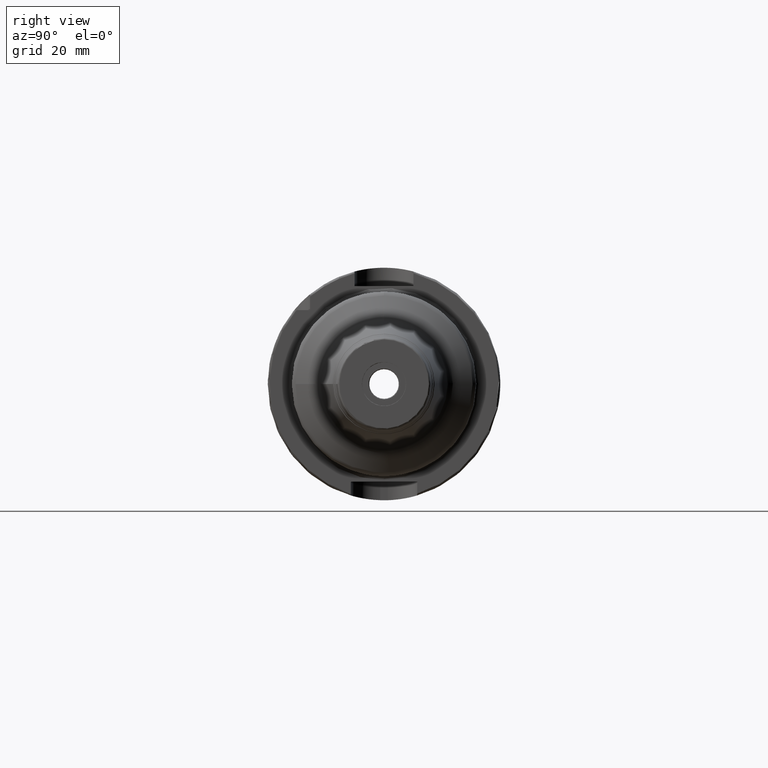
[diagram: clean part render]
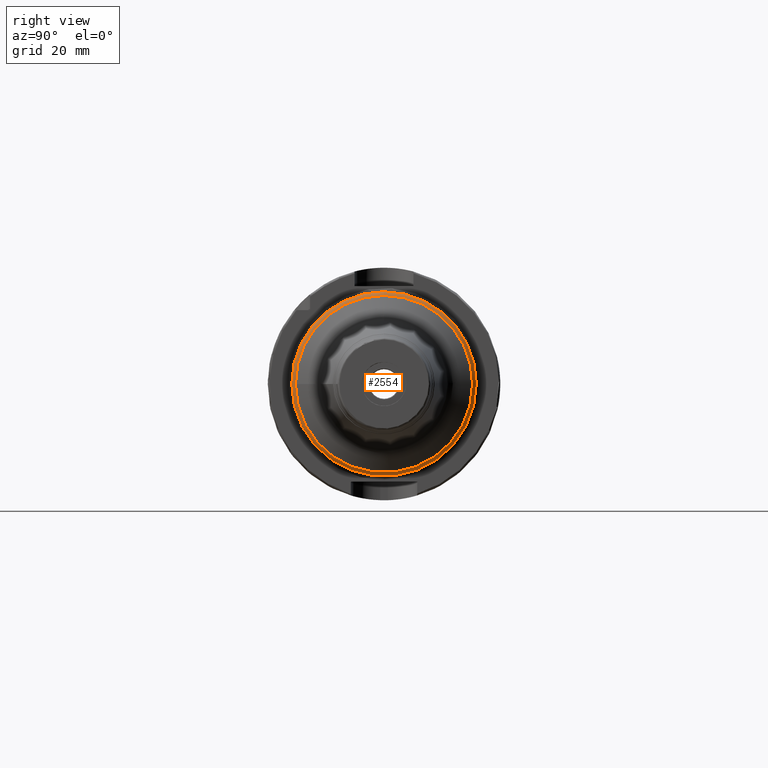
[diagram: same view with one face highlighted and labeled with its STEP entity id]
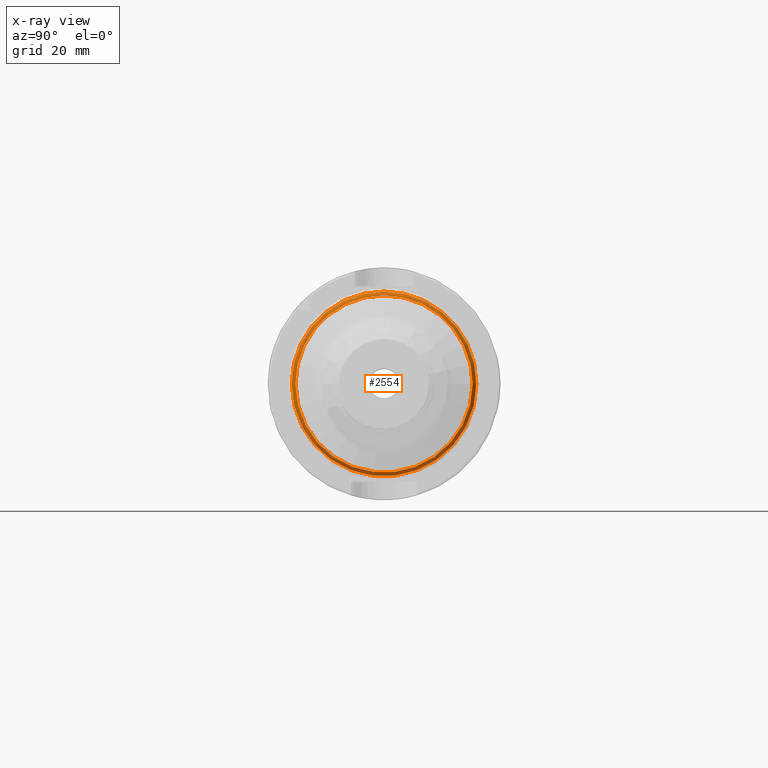
[diagram: x-ray of the same camera — body ghosted, the highlighted face saturated]
A machine part, right view. The second image highlights one B-rep face of the part: STEP entity #2554.
The next image is the same camera in x-ray: the body ghosted, the highlighted face saturated — about 0% of this face is hidden behind the body in this view.
In plain terms, the highlighted toroidal blend (fillet) surface has major radius 23 mm and minor (blend) radius 2 mm.
Its self-contained STEP definition (entity closure, byte-faithful):
#448=FACE_OUTER_BOUND('',#585,.T.);
#585=EDGE_LOOP('',(#1720,#1721,#1722,#1723,#1724,#1725,#1726,#1727));
#731=CIRCLE('',#2712,25.);
#732=CIRCLE('',#2713,25.);
#733=CIRCLE('',#2714,25.);
#744=CIRCLE('',#2728,24.);
#745=CIRCLE('',#2729,24.);
#746=CIRCLE('',#2730,24.);
#750=CIRCLE('',#2736,2.);
#956=VERTEX_POINT('',#3941);
#957=VERTEX_POINT('',#3942);
#958=VERTEX_POINT('',#3944);
#976=VERTEX_POINT('',#3986);
#977=VERTEX_POINT('',#3988);
#978=VERTEX_POINT('',#3990);
#1251=EDGE_CURVE('',#956,#957,#731,.T.);
#1252=EDGE_CURVE('',#958,#956,#732,.T.);
#1254=EDGE_CURVE('',#957,#958,#733,.T.);
#1274=EDGE_CURVE('',#977,#976,#744,.T.);
#1275=EDGE_CURVE('',#978,#977,#745,.T.);
#1276=EDGE_CURVE('',#976,#978,#746,.T.);
#1281=EDGE_CURVE('',#978,#957,#750,.T.);
#1720=ORIENTED_EDGE('',*,*,#1274,.T.);
#1721=ORIENTED_EDGE('',*,*,#1276,.T.);
#1722=ORIENTED_EDGE('',*,*,#1281,.T.);
#1723=ORIENTED_EDGE('',*,*,#1254,.T.);
#1724=ORIENTED_EDGE('',*,*,#1252,.T.);
#1725=ORIENTED_EDGE('',*,*,#1251,.T.);
#1726=ORIENTED_EDGE('',*,*,#1281,.F.);
#1727=ORIENTED_EDGE('',*,*,#1275,.T.);
#2516=TOROIDAL_SURFACE('',#2735,23.,2.);
#2554=ADVANCED_FACE('',(#448),#2516,.T.);
#2712=AXIS2_PLACEMENT_3D('',#3943,#3090,#3091);
#2713=AXIS2_PLACEMENT_3D('',#3945,#3092,#3093);
#2714=AXIS2_PLACEMENT_3D('',#3947,#3095,#3096);
#2728=AXIS2_PLACEMENT_3D('',#3989,#3132,#3133);
#2729=AXIS2_PLACEMENT_3D('',#3991,#3134,#3135);
#2730=AXIS2_PLACEMENT_3D('',#3992,#3136,#3137);
#2735=AXIS2_PLACEMENT_3D('',#4001,#3147,#3148);
#2736=AXIS2_PLACEMENT_3D('',#4002,#3149,#3150);
#3090=DIRECTION('center_axis',(1.,0.,0.));
#3091=DIRECTION('ref_axis',(0.,-1.,1.83697019872103E-16));
#3092=DIRECTION('center_axis',(1.,0.,0.));
#3093=DIRECTION('ref_axis',(0.,-1.,1.83697019872103E-16));
#3095=DIRECTION('center_axis',(1.,0.,0.));
#3096=DIRECTION('ref_axis',(0.,-1.,1.83697019872103E-16));
#3132=DIRECTION('center_axis',(-1.,0.,0.));
#3133=DIRECTION('ref_axis',(0.,-1.,3.06161699786838E-17));
#3134=DIRECTION('center_axis',(-1.,0.,0.));
#3135=DIRECTION('ref_axis',(0.,-1.,3.06161699786838E-17));
#3136=DIRECTION('center_axis',(-1.,0.,0.));
#3137=DIRECTION('ref_axis',(0.,-1.,3.06161699786838E-17));
#3147=DIRECTION('center_axis',(1.,0.,0.));
#3148=DIRECTION('ref_axis',(0.,0.,-1.));
#3149=DIRECTION('center_axis',(0.,-1.,-1.22464679914735E-16));
#3150=DIRECTION('ref_axis',(0.,-1.22464679914735E-16,1.));
#3941=CARTESIAN_POINT('',(49.3516091896529,25.,-1.53080849893419E-15));
#3942=CARTESIAN_POINT('',(49.3516091896529,-3.06161699786838E-15,25.));
#3943=CARTESIAN_POINT('Origin',(49.3516091896529,0.,0.));
#3944=CARTESIAN_POINT('',(49.3516091896529,-25.,-3.06161699786838E-15));
#3945=CARTESIAN_POINT('Origin',(49.3516091896529,0.,0.));
#3947=CARTESIAN_POINT('Origin',(49.3516091896529,0.,0.));
#3986=CARTESIAN_POINT('',(51.0836599972218,-24.,-2.93915231795365E-15));
#3988=CARTESIAN_POINT('',(51.0836599972218,24.,-7.34788079488412E-15));
#3989=CARTESIAN_POINT('Origin',(51.0836599972218,0.,-3.67394039744206E-15));
#3990=CARTESIAN_POINT('',(51.0836599972218,-2.93915231795365E-15,24.));
#3991=CARTESIAN_POINT('Origin',(51.0836599972218,0.,-3.67394039744206E-15));
#3992=CARTESIAN_POINT('Origin',(51.0836599972218,0.,-3.67394039744206E-15));
#4001=CARTESIAN_POINT('Origin',(49.3516091896529,0.,0.));
#4002=CARTESIAN_POINT('Origin',(49.3516091896529,-2.81668763803891E-15,
23.));